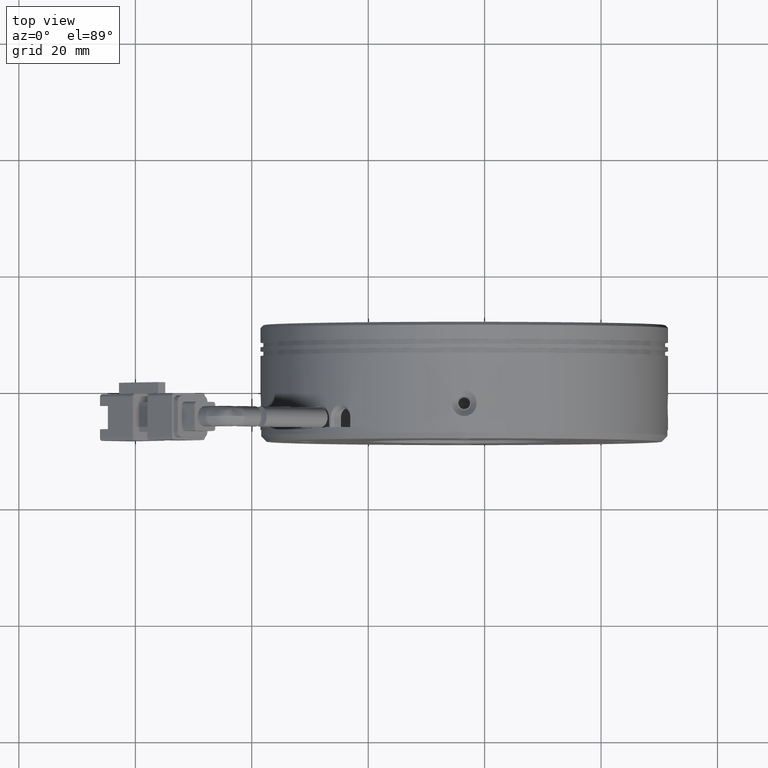
[diagram: clean part render]
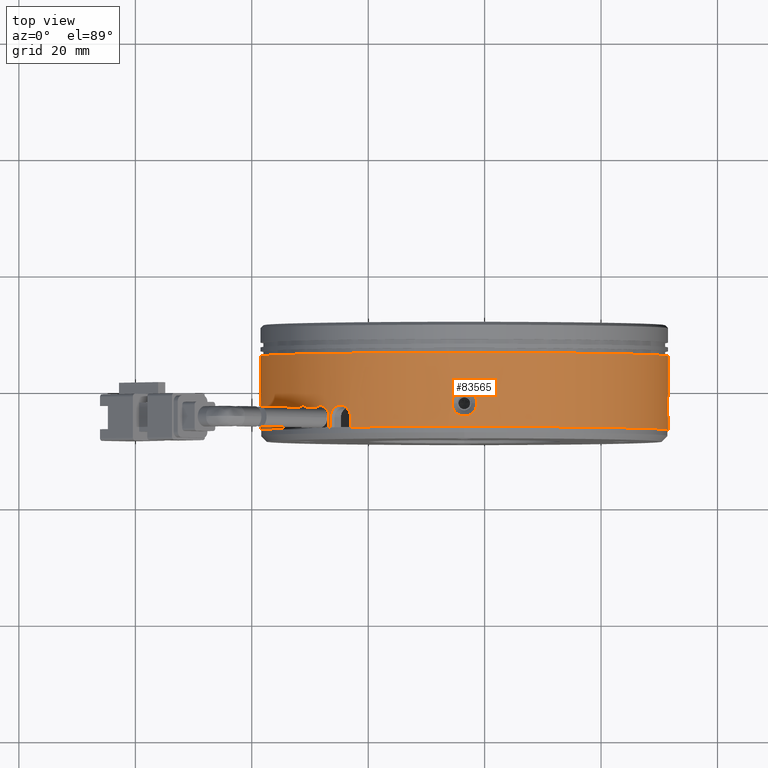
[diagram: same view with one face highlighted and labeled with its STEP entity id]
A machine part, top view. The second image highlights one B-rep face of the part: STEP entity #83565.
In plain terms, the highlighted cylindrical surface (partial cylindrical patch) has radius 35 mm, axis along (0, 1, 0).
Its self-contained STEP definition (entity closure, byte-faithful):
#10 = CARTESIAN_POINT ( 'NONE',  ( -38.45770563612305900, 38.41622023768910300, 1.715529665173488100 ) ) ;
#486 = CARTESIAN_POINT ( 'NONE',  ( -29.39579181623729600, 36.04285887621468000, 23.54514694683041800 ) ) ;
#733 = AXIS2_PLACEMENT_3D ( 'NONE', #43189, #1356, #50207 ) ;
#787 = CARTESIAN_POINT ( 'NONE',  ( -27.49805027081105600, 36.57435920577491100, 25.47684187512815900 ) ) ;
#1079 = ORIENTED_EDGE ( 'NONE', *, *, #63368, .T. ) ;
#1165 = ORIENTED_EDGE ( 'NONE', *, *, #6461, .T. ) ;
#1166 = CIRCLE ( 'NONE', #733, 35.00000000000000700 ) ;
#1356 = DIRECTION ( 'NONE',  ( 0.0000000000000000000, 1.000000000000000000, 0.0000000000000000000 ) ) ;
#1465 = CARTESIAN_POINT ( 'NONE',  ( -29.68536783976339400, 33.09174467303469000, 23.22253534177989900 ) ) ;
#2029 = ORIENTED_EDGE ( 'NONE', *, *, #71524, .T. ) ;
#2268 = CARTESIAN_POINT ( 'NONE',  ( -1.377828845883924300, 36.79194204904494100, 34.93566040393197600 ) ) ;
#2479 = CARTESIAN_POINT ( 'NONE',  ( -3.499229287090496400, 45.77623868994505300, -6.938893903907228400E-015 ) ) ;
#2578 = CARTESIAN_POINT ( 'NONE',  ( -3.638546594217164600, 34.87608461347451100, 35.00000911203947900 ) ) ;
#2601 = CARTESIAN_POINT ( 'NONE',  ( 31.49989311918675800, 34.89093892779393300, 0.2839471918921995200 ) ) ;
#2624 = CARTESIAN_POINT ( 'NONE',  ( -32.52532653127335000, 34.77623868994502500, 19.55724108281228600 ) ) ;
#2775 = CARTESIAN_POINT ( 'NONE',  ( -38.44635800336753600, 36.11228447202373100, 1.923778371862195900 ) ) ;
#2870 = CARTESIAN_POINT ( 'NONE',  ( -5.634061360858559900, 36.79002064916819800, 34.93483207368844700 ) ) ;
#2895 = CARTESIAN_POINT ( 'NONE',  ( 31.48425830003619900, 35.17396811425491900, 1.081301219104309900 ) ) ;
#2925 = CARTESIAN_POINT ( 'NONE',  ( -31.90791523299462500, 36.61451122822583700, 20.44535692094542900 ) ) ;
#3087 = VECTOR ( 'NONE', #24589, 1000.000000000000000 ) ;
#3236 = CARTESIAN_POINT ( 'NONE',  ( -30.25864505335594100, 36.17448260794892400, 22.55978353994103700 ) ) ;
#3671 = VERTEX_POINT ( 'NONE', #27263 ) ;
#3915 = EDGE_CURVE ( 'NONE', #46100, #88292, #7172, .T. ) ;
#4243 = EDGE_LOOP ( 'NONE', ( #59723, #11492, #84028, #39802, #88418, #65227, #29421, #36860, #26182, #74155, #1079, #44317, #30576, #78158, #74727, #83941, #58349, #9268, #65134, #29332, #13730, #2029, #74079, #75276, #25653, #69860, #26731, #4785 ) ) ;
#4408 = CARTESIAN_POINT ( 'NONE',  ( 31.47618942203703800, 38.82374157385329700, 1.325940147550659100 ) ) ;
#4785 = ORIENTED_EDGE ( 'NONE', *, *, #12772, .T. ) ;
#5005 = CARTESIAN_POINT ( 'NONE',  ( -24.91445535935785900, 36.87641542370931800, 27.68406309555492200 ) ) ;
#5303 = CARTESIAN_POINT ( 'NONE',  ( -23.15049905526861100, 35.46049154687053600, 28.96257360312102600 ) ) ;
#5922 = VERTEX_POINT ( 'NONE', #62236 ) ;
#5997 = CARTESIAN_POINT ( 'NONE',  ( -23.05692204881608400, 33.07623868994505000, 29.02579290625166700 ) ) ;
#6438 = CARTESIAN_POINT ( 'NONE',  ( -4.061863196109476900, 39.20344228934077800, 34.99575431248762000 ) ) ;
#6461 = EDGE_CURVE ( 'NONE', #88292, #46100, #16397, .T. ) ;
#6729 = CARTESIAN_POINT ( 'NONE',  ( -1.641182181223893400, 38.16864679442213100, 34.95072983954757700 ) ) ;
#6776 = CARTESIAN_POINT ( 'NONE',  ( -38.49922928709051500, 39.27623868984750300, 0.1431489450139444000 ) ) ;
#6929 = DIRECTION ( 'NONE',  ( 1.000000000000000000, 0.0000000000000000000, 1.942890293094023700E-016 ) ) ;
#7072 = CARTESIAN_POINT ( 'NONE',  ( -38.44046198416396700, 37.77755843533714900, 2.028049576817924300 ) ) ;
#7172 = B_SPLINE_CURVE_WITH_KNOTS ( 'NONE', 3,
 ( #22604, #50732, #8954, #20107, #68969, #27142, #75986, #34141, #82960, #41168, #89990, #48190, #6438, #55228, #13418, #62276, #20409, #69283, #27433, #76291, #34449, #83262, #41466, #90295, #48479, #6729, #55521, #13724, #62562, #20713 ),
 .UNSPECIFIED., .F., .F.,
 ( 4, 2, 2, 2, 2, 2, 2, 2, 2, 2, 2, 2, 2, 2, 4 ),
 ( 0.006801280354614730600, 0.007226328082781620700, 0.007651375810948510800, 0.008076423539115400900, 0.008501471267282290100, 0.009351566723616072000, 0.009776614451782964600, 0.01020166217994985600, 0.01062670990811674800, 0.01105175763628364100, 0.01147680536445053200, 0.01190185309261742500, 0.01232690082078431700, 0.01275194854895121000, 0.01360204400528499500 ),
 .UNSPECIFIED. ) ;
#7326 = FACE_BOUND ( 'NONE', #37972, .T. ) ;
#7560 = CARTESIAN_POINT ( 'NONE',  ( -29.13898031813537400, 36.43399729829361200, 23.82521363262265600 ) ) ;
#7722 = LINE ( 'NONE', #69439, #61243 ) ;
#7863 = CARTESIAN_POINT ( 'NONE',  ( -27.25449831927776100, 36.34085957950461000, 25.70402407524467100 ) ) ;
#7907 = CARTESIAN_POINT ( 'NONE',  ( -32.52504669713086800, 33.07623868994506500, 19.55765639535549700 ) ) ;
#8104 = VERTEX_POINT ( 'NONE', #88146 ) ;
#8524 = CARTESIAN_POINT ( 'NONE',  ( -38.49922928709050800, 49.23205631493804200, -1.373900992973631200E-014 ) ) ;
#8535 = CARTESIAN_POINT ( 'NONE',  ( -29.68551046036887800, 33.11147853065057900, 23.22237451928647200 ) ) ;
#8770 = CARTESIAN_POINT ( 'NONE',  ( -26.46604826730417400, 33.08662152481653600, 26.41070286712597000 ) ) ;
#8954 = CARTESIAN_POINT ( 'NONE',  ( -5.620629728297060100, 37.36053533084530200, 34.93566040393197600 ) ) ;
#9268 = ORIENTED_EDGE ( 'NONE', *, *, #50012, .T. ) ;
#9304 = CARTESIAN_POINT ( 'NONE',  ( -1.471187954059558500, 36.37487891295896200, 34.94123322545146900 ) ) ;
#9503 = DIRECTION ( 'NONE',  ( -1.000000000000000000, 0.0000000000000000000, -1.942890293094023500E-016 ) ) ;
#9603 = CARTESIAN_POINT ( 'NONE',  ( -4.059066451369793600, 34.94830758286238400, 34.99579616371983100 ) ) ;
#9807 = CARTESIAN_POINT ( 'NONE',  ( -38.45766819020756300, 35.74748487293023700, 1.706868790765627900 ) ) ;
#9935 = CARTESIAN_POINT ( 'NONE',  ( 31.47196835853760500, 35.43029536651063400, 1.422976774197618700 ) ) ;
#9962 = CARTESIAN_POINT ( 'NONE',  ( -31.60007463868275200, 36.80919942385151700, 20.86531018256495400 ) ) ;
#10162 = AXIS2_PLACEMENT_3D ( 'NONE', #2479, #51296, #9503 ) ;
#10261 = CARTESIAN_POINT ( 'NONE',  ( -30.09884793005326700, 35.84071393895220600, 22.74788916778230400 ) ) ;
#11120 = CARTESIAN_POINT ( 'NONE',  ( 31.43560278660753600, 37.07623868994505800, 2.134832073611387000 ) ) ;
#11400 = CARTESIAN_POINT ( 'NONE',  ( 31.49401059829447300, 39.15957240098404700, 0.6999233007469922700 ) ) ;
#11492 = ORIENTED_EDGE ( 'NONE', *, *, #62648, .T. ) ;
#11518 = DIRECTION ( 'NONE',  ( -0.0000000000000000000, -1.000000000000000000, -0.0000000000000000000 ) ) ;
#11688 = CARTESIAN_POINT ( 'NONE',  ( -26.41363987872078300, 35.32599599629639200, 26.45620074062070900 ) ) ;
#11729 = CARTESIAN_POINT ( 'NONE',  ( -26.72160380067638400, 34.77623868994505300, 26.18628117833375800 ) ) ;
#11987 = CARTESIAN_POINT ( 'NONE',  ( -24.58207903139069800, 36.86199809948782800, 27.93800242384497800 ) ) ;
#12077 = DIRECTION ( 'NONE',  ( 0.0000000000000000000, 1.000000000000000000, 0.0000000000000000000 ) ) ;
#12282 = CARTESIAN_POINT ( 'NONE',  ( -23.06874529189614600, 35.05714326796012900, 29.01783674772186600 ) ) ;
#12772 = EDGE_CURVE ( 'NONE', #77576, #81499, #81363, .T. ) ;
#13239 = CARTESIAN_POINT ( 'NONE',  ( -29.90972721175718300, 33.10628337847124700, 22.96705465094409600 ) ) ;
#13418 = CARTESIAN_POINT ( 'NONE',  ( -3.643087931106197000, 39.27608212271423600, 34.99999074064810900 ) ) ;
#13525 = VERTEX_POINT ( 'NONE', #61429 ) ;
#13724 = CARTESIAN_POINT ( 'NONE',  ( -1.419032314842205000, 37.64625739446822900, 34.93828416888766200 ) ) ;
#13730 = ORIENTED_EDGE ( 'NONE', *, *, #22802, .T. ) ;
#14080 = CARTESIAN_POINT ( 'NONE',  ( -38.43488899005446800, 37.36049043939159000, 2.121412253093250200 ) ) ;
#14330 = EDGE_CURVE ( 'NONE', #68440, #8104, #38010, .T. ) ;
#14559 = CARTESIAN_POINT ( 'NONE',  ( -28.71899431193891800, 36.74013805675299700, 24.26889469041680100 ) ) ;
#14877 = CARTESIAN_POINT ( 'NONE',  ( -27.04517305196541300, 36.04416105285866200, 25.89583728303579600 ) ) ;
#15787 = CARTESIAN_POINT ( 'NONE',  ( -26.46621055027218700, 33.10165680662448300, 26.41056174481128600 ) ) ;
#16201 = DIRECTION ( 'NONE',  ( 0.0000000000000000000, 1.000000000000000000, 0.0000000000000000000 ) ) ;
#16251 = VECTOR ( 'NONE', #71066, 1000.000000000000000 ) ;
#16330 = CARTESIAN_POINT ( 'NONE',  ( -1.639681307294347500, 35.98650694867659900, 34.95065003424878100 ) ) ;
#16397 = B_SPLINE_CURVE_WITH_KNOTS ( 'NONE', 3,
 ( #85857, #44082, #2268, #51111, #9304, #58142, #16330, #65165, #23325, #72161, #30302, #79193, #37320, #86152, #44392, #2578, #51402, #9603, #58441, #16639, #65461, #23640, #72460, #30622, #79489, #37623, #86474, #44706, #2870, #51708 ),
 .UNSPECIFIED., .F., .F.,
 ( 4, 2, 2, 2, 2, 2, 2, 2, 2, 2, 2, 2, 2, 2, 4 ),
 ( 0.0000000000000000000, 0.0004250800221634180100, 0.0008501600443268360200, 0.001275240066490254000, 0.001700320088653672000, 0.002550480132980507200, 0.002975560155143929700, 0.003400640177307351900, 0.003825720199470774000, 0.004250800221634197000, 0.004675880243797618700, 0.005100960265961042100, 0.005526040288124463800, 0.005951120310287887200, 0.006801280354614730600 ),
 .UNSPECIFIED. ) ;
#16526 = CARTESIAN_POINT ( 'NONE',  ( -38.43406136078915100, 37.07623868994505800, 2.134832073601135200 ) ) ;
#16564 = LINE ( 'NONE', #53949, #51499 ) ;
#16639 = CARTESIAN_POINT ( 'NONE',  ( -4.456000541674549200, 35.10426819026291400, 34.98716591107664400 ) ) ;
#16683 = CARTESIAN_POINT ( 'NONE',  ( -32.52532439524604500, 34.91665560219384200, 19.55724425302102500 ) ) ;
#16839 = CARTESIAN_POINT ( 'NONE',  ( -38.47464799621824500, 35.32873580604307800, 1.325940147544953500 ) ) ;
#16962 = CARTESIAN_POINT ( 'NONE',  ( 31.45084846215306800, 35.98093638822206900, 1.871623688163358300 ) ) ;
#16989 = CARTESIAN_POINT ( 'NONE',  ( -31.35310266635988400, 36.87569678694518400, 21.19389037858061500 ) ) ;
#17303 = CARTESIAN_POINT ( 'NONE',  ( -29.98302609540985100, 35.46114222802624000, 22.88255891083416000 ) ) ;
#17718 = LINE ( 'NONE', #46863, #31837 ) ;
#18446 = CARTESIAN_POINT ( 'NONE',  ( 31.49989230067373200, 39.26152844011900100, 0.2844990879349596500 ) ) ;
#18724 = CARTESIAN_POINT ( 'NONE',  ( -26.29906092009340000, 35.71675935869110000, 26.55504965282142700 ) ) ;
#19000 = CARTESIAN_POINT ( 'NONE',  ( -24.25735222048315600, 36.76992079441872400, 28.18008267164554300 ) ) ;
#19297 = CARTESIAN_POINT ( 'NONE',  ( -23.05650673183460600, 34.77623868994505300, 29.02607274416062200 ) ) ;
#19358 = VERTEX_POINT ( 'NONE', #63378 ) ;
#19421 = LINE ( 'NONE', #80437, #3087 ) ;
#19662 = DIRECTION ( 'NONE',  ( -1.000000000000000000, 0.0000000000000000000, -1.942890293094023500E-016 ) ) ;
#19789 = B_SPLINE_CURVE_WITH_KNOTS ( 'NONE', 3,
 ( #82762, #76380, #83334, #41563 ),
 .UNSPECIFIED., .F., .F.,
 ( 4, 4 ),
 ( 1.353093207250491300E-015, 4.511111109491530600E-005 ),
 .UNSPECIFIED. ) ;
#20107 = CARTESIAN_POINT ( 'NONE',  ( -5.567520195589478000, 37.63922103406199700, 34.93884486368479300 ) ) ;
#20331 = VERTEX_POINT ( 'NONE', #62899 ) ;
#20385 = B_SPLINE_CURVE_WITH_KNOTS ( 'NONE', 3,
 ( #88270, #39460, #53520, #11688, #60575, #18724, #67591, #25745, #74556, #32731, #81599, #39734, #88564, #46782, #5005, #53804, #11987, #60874, #19000, #67873, #26041, #74861, #33029, #81886, #40029, #88866, #47076, #5303, #54121, #12282, #61169, #19297 ),
 .UNSPECIFIED., .F., .F.,
 ( 4, 2, 2, 2, 2, 2, 2, 2, 2, 2, 2, 2, 2, 2, 2, 4 ),
 ( 0.0000000000000000000, 0.0004152412882299011100, 0.0008304825764598022100, 0.001245723864689703500, 0.001660965152919604400, 0.002491447729379407100, 0.002906689017609318600, 0.003321930305839230500, 0.003737171594069141600, 0.004152412882299052700, 0.004567654170528964200, 0.004982895458758875700, 0.005398136746988788100, 0.005813378035218699600, 0.006228619323448610300, 0.006643860611678522600 ),
 .UNSPECIFIED. ) ;
#20409 = CARTESIAN_POINT ( 'NONE',  ( -3.216260356081338300, 39.26166511440352700, 34.99912992300265600 ) ) ;
#20584 = CARTESIAN_POINT ( 'NONE',  ( -23.05650673183460600, 34.77623868994505300, 29.02607274416062200 ) ) ;
#20713 = CARTESIAN_POINT ( 'NONE',  ( -1.364397213318255400, 37.07623868994505800, 34.93483207367803800 ) ) ;
#20752 = CARTESIAN_POINT ( 'NONE',  ( -38.49835169336775200, 39.26153845208899200, 0.2839471918912897000 ) ) ;
#21062 = CARTESIAN_POINT ( 'NONE',  ( -38.43406136078915100, 37.07623868994505800, 2.134832073601135200 ) ) ;
#21306 = CARTESIAN_POINT ( 'NONE',  ( -29.68525516250278800, 33.08140695311698900, 23.22266239829805600 ) ) ;
#21513 = CARTESIAN_POINT ( 'NONE',  ( -38.49922928709050800, 33.07623868994505000, -1.373900992973631200E-014 ) ) ;
#21548 = CARTESIAN_POINT ( 'NONE',  ( -28.43973708831976300, 36.83183447587025900, 24.55583575869665600 ) ) ;
#21653 = DIRECTION ( 'NONE',  ( -0.0000000000000000000, -1.000000000000000000, -0.0000000000000000000 ) ) ;
#21848 = CARTESIAN_POINT ( 'NONE',  ( -26.88234878610289200, 35.69914915832100600, 26.04289847207001800 ) ) ;
#22604 = CARTESIAN_POINT ( 'NONE',  ( -5.634061360858810400, 37.07623868994505800, 34.93483207368843300 ) ) ;
#22780 = CARTESIAN_POINT ( 'NONE',  ( -26.46626367548724800, 33.12134584970633000, 26.41051554593739300 ) ) ;
#22802 = EDGE_CURVE ( 'NONE', #56118, #80479, #19421, .T. ) ;
#23325 = CARTESIAN_POINT ( 'NONE',  ( -1.881252523132536800, 35.63423702143155900, 34.96271823226722100 ) ) ;
#23640 = CARTESIAN_POINT ( 'NONE',  ( -4.811760792018039200, 35.33546143960907000, 34.97557273294851400 ) ) ;
#23665 = CARTESIAN_POINT ( 'NONE',  ( 31.50077071290951400, 34.87623869003545700, 0.1431489450146108700 ) ) ;
#23691 = CARTESIAN_POINT ( 'NONE',  ( -32.48572756146808900, 35.32586441836723900, 19.61590456905646500 ) ) ;
#23765 = CARTESIAN_POINT ( 'NONE',  ( -32.52511439086308100, 33.08169378863010500, 19.55755593004963400 ) ) ;
#23861 = CARTESIAN_POINT ( 'NONE',  ( -38.49246917247553100, 34.99290497891301800, 0.6999233007439869000 ) ) ;
#23975 = CARTESIAN_POINT ( 'NONE',  ( 31.43961742061734200, 36.51311142837625600, 2.068260033015473000 ) ) ;
#24001 = CARTESIAN_POINT ( 'NONE',  ( -31.09779853123330200, 36.86352304521961500, 21.52527646639874000 ) ) ;
#24301 = CARTESIAN_POINT ( 'NONE',  ( -29.91924764129770200, 35.05716682080303300, 22.95611932965989900 ) ) ;
#24589 = DIRECTION ( 'NONE',  ( -0.0000000000000000000, -1.000000000000000000, -0.0000000000000000000 ) ) ;
#25156 = CARTESIAN_POINT ( 'NONE',  ( 31.43643076592787700, 37.36047549362609000, 2.121406078974754600 ) ) ;
#25272 = CARTESIAN_POINT ( 'NONE',  ( 31.50077071290951400, 33.07623868994505000, 4.147485918937592700E-015 ) ) ;
#25386 = EDGE_CURVE ( 'NONE', #72242, #43570, #32188, .T. ) ;
#25430 = VECTOR ( 'NONE', #85332, 1000.000000000000000 ) ;
#25455 = CARTESIAN_POINT ( 'NONE',  ( 31.50077071290951400, 39.27623868985474300, 4.147485918937590400E-015 ) ) ;
#25507 = EDGE_CURVE ( 'NONE', #43570, #40485, #57904, .T. ) ;
#25653 = ORIENTED_EDGE ( 'NONE', *, *, #36026, .T. ) ;
#25745 = CARTESIAN_POINT ( 'NONE',  ( -26.12825900235608500, 36.06718584694523600, 26.70080962140444200 ) ) ;
#25867 = FACE_OUTER_BOUND ( 'NONE', #4243, .T. ) ;
#26041 = CARTESIAN_POINT ( 'NONE',  ( -23.94712327928421700, 36.60159261119267200, 28.40593523917219800 ) ) ;
#26182 = ORIENTED_EDGE ( 'NONE', *, *, #58562, .T. ) ;
#26731 = ORIENTED_EDGE ( 'NONE', *, *, #86836, .T. ) ;
#26842 = CARTESIAN_POINT ( 'NONE',  ( 31.50077071290951400, 49.23205631493804200, 4.147485918937592700E-015 ) ) ;
#27142 = CARTESIAN_POINT ( 'NONE',  ( -5.422920050273456900, 38.04038280663406400, 34.94713357074540000 ) ) ;
#27154 = VECTOR ( 'NONE', #11518, 1000.000000000000000 ) ;
#27263 = CARTESIAN_POINT ( 'NONE',  ( -38.49922928709050800, 34.87623869004255500, -1.373900992973631200E-014 ) ) ;
#27433 = CARTESIAN_POINT ( 'NONE',  ( -2.804604219278020900, 39.16158596806590000, 34.99335202203368300 ) ) ;
#27780 = CARTESIAN_POINT ( 'NONE',  ( -38.49249950808673800, 39.16011748836337600, 0.6984956733258577100 ) ) ;
#28253 = CARTESIAN_POINT ( 'NONE',  ( 31.50077071290951400, 45.77623868994505300, 4.147485918937592700E-015 ) ) ;
#28272 = CARTESIAN_POINT ( 'NONE',  ( -29.67636220665136500, 35.04911305928607800, 23.23270199531184600 ) ) ;
#28570 = CARTESIAN_POINT ( 'NONE',  ( -28.15257181959658400, 36.84496330723037300, 24.84413773591424900 ) ) ;
#28654 = CARTESIAN_POINT ( 'NONE',  ( -38.49922928709050800, 39.27623868984756000, -1.373900992973624100E-014 ) ) ;
#28788 = CARTESIAN_POINT ( 'NONE',  ( -26.46626367548724800, 33.12134584970633000, 26.41051554593739300 ) ) ;
#28871 = CARTESIAN_POINT ( 'NONE',  ( -26.77290270205204300, 35.31811580457318200, 26.14071285353338000 ) ) ;
#29150 = VERTEX_POINT ( 'NONE', #65575 ) ;
#29332 = ORIENTED_EDGE ( 'NONE', *, *, #41014, .T. ) ;
#29421 = ORIENTED_EDGE ( 'NONE', *, *, #43954, .F. ) ;
#29467 = CARTESIAN_POINT ( 'NONE',  ( -26.46597744918592500, 33.08142987498360600, 26.41076445072638600 ) ) ;
#30302 = CARTESIAN_POINT ( 'NONE',  ( -2.411786295882789600, 35.16127076750273500, 34.98405969625237300 ) ) ;
#30576 = ORIENTED_EDGE ( 'NONE', *, *, #44567, .T. ) ;
#30622 = CARTESIAN_POINT ( 'NONE',  ( -5.117256481201883900, 35.63419414744073100, 34.96271800440749900 ) ) ;
#30673 = CARTESIAN_POINT ( 'NONE',  ( -32.39959824740081000, 35.71585469069387400, 19.74263730738862000 ) ) ;
#30764 = VERTEX_POINT ( 'NONE', #48445 ) ;
#30821 = CARTESIAN_POINT ( 'NONE',  ( -38.49835087485472900, 34.89094893977823400, 0.2844990879335367300 ) ) ;
#30851 = CIRCLE ( 'NONE', #60192, 35.00000000000000700 ) ;
#30945 = CARTESIAN_POINT ( 'NONE',  ( 31.43560278659842700, 36.93322241865560300, 2.134832073614672900 ) ) ;
#30973 = CARTESIAN_POINT ( 'NONE',  ( -30.84669509655437700, 36.77321488735094600, 21.84337122616842600 ) ) ;
#31038 = CARTESIAN_POINT ( 'NONE',  ( -32.52516980470208100, 33.08714941961366000, 19.55747368844025800 ) ) ;
#31276 = CARTESIAN_POINT ( 'NONE',  ( -29.90972720879264200, 34.77623868994502500, 22.96705465504375000 ) ) ;
#31613 = CARTESIAN_POINT ( 'NONE',  ( -5.634061360858810400, 37.07623868994505800, 34.93483207368843300 ) ) ;
#31837 = VECTOR ( 'NONE', #12077, 1000.000000000000000 ) ;
#32069 = LINE ( 'NONE', #26842, #87761 ) ;
#32133 = CARTESIAN_POINT ( 'NONE',  ( 31.44200129304226000, 37.77745431248731500, 2.028086359619889500 ) ) ;
#32188 = B_SPLINE_CURVE_WITH_KNOTS ( 'NONE', 3,
 ( #79512, #23665, #2601, #37652, #86495, #44728, #2895, #51737, #9935, #58775, #16962, #65789, #23975, #72790, #30945, #79810 ),
 .UNSPECIFIED., .F., .F.,
 ( 4, 2, 2, 2, 2, 2, 2, 4 ),
 ( 0.006786052840671052600, 0.007210104708504526000, 0.007634156576337999500, 0.008058208444171472900, 0.008482260312004946300, 0.009330364047671879300, 0.009754415915505344100, 0.01017846778333881100 ),
 .UNSPECIFIED. ) ;
#32731 = CARTESIAN_POINT ( 'NONE',  ( -25.82974311901726900, 36.46406100834682500, 26.95158187246774200 ) ) ;
#33029 = CARTESIAN_POINT ( 'NONE',  ( -23.66895945501089200, 36.36599182774763500, 28.60405928037530300 ) ) ;
#33394 = CARTESIAN_POINT ( 'NONE',  ( -3.499229287090496400, 49.23205631493804200, -6.938893903907228400E-015 ) ) ;
#33631 = CARTESIAN_POINT ( 'NONE',  ( -38.49922928709050800, 45.77623868994505300, -1.373900992973631200E-014 ) ) ;
#33645 = EDGE_CURVE ( 'NONE', #40485, #78695, #16564, .T. ) ;
#33779 = VERTEX_POINT ( 'NONE', #90224 ) ;
#33853 = DIRECTION ( 'NONE',  ( 0.0000000000000000000, 1.000000000000000000, 0.0000000000000000000 ) ) ;
#34141 = CARTESIAN_POINT ( 'NONE',  ( -5.205920405684299400, 38.40523833648740700, 34.95844764762033200 ) ) ;
#34265 = CARTESIAN_POINT ( 'NONE',  ( -29.91005054073716700, 33.07623868994407000, 22.96668284071266100 ) ) ;
#34449 = CARTESIAN_POINT ( 'NONE',  ( -2.418311699921419100, 38.97865895142625400, 34.98349673944768800 ) ) ;
#34745 = VECTOR ( 'NONE', #74036, 1000.000000000000000 ) ;
#34790 = CARTESIAN_POINT ( 'NONE',  ( -38.48271687421729600, 38.97850926562809100, 1.081301219100581300 ) ) ;
#35272 = CARTESIAN_POINT ( 'NONE',  ( -29.61324911594615400, 35.44738323422608100, 23.30366487374871600 ) ) ;
#35581 = CARTESIAN_POINT ( 'NONE',  ( -27.86347176797479000, 36.77959478235775500, 25.12770389691147700 ) ) ;
#35739 = CARTESIAN_POINT ( 'NONE',  ( -23.05650673256541000, 33.12134584970664300, 29.02607274384642700 ) ) ;
#35874 = CARTESIAN_POINT ( 'NONE',  ( -26.72160634945139200, 34.91384702673369100, 26.18627891804307900 ) ) ;
#36026 = EDGE_CURVE ( 'NONE', #44043, #30764, #17718, .T. ) ;
#36159 = AXIS2_PLACEMENT_3D ( 'NONE', #33394, #82230, #19662 ) ;
#36860 = ORIENTED_EDGE ( 'NONE', *, *, #45403, .T. ) ;
#36925 = LINE ( 'NONE', #64069, #16251 ) ;
#37320 = CARTESIAN_POINT ( 'NONE',  ( -2.936595378071500800, 34.94903509054933700, 34.99575431248762000 ) ) ;
#37513 = CARTESIAN_POINT ( 'NONE',  ( -38.43488934010948600, 36.79200188626543900, 2.121406078964621400 ) ) ;
#37623 = CARTESIAN_POINT ( 'NONE',  ( -5.357276392957104800, 35.98383058546797000, 34.95072983954757700 ) ) ;
#37652 = CARTESIAN_POINT ( 'NONE',  ( 31.49654833088533900, 34.94863042771424900, 0.5610206150783537700 ) ) ;
#37682 = CARTESIAN_POINT ( 'NONE',  ( -32.27119035412150100, 36.06534127509602400, 19.92939004156805500 ) ) ;
#37744 = CARTESIAN_POINT ( 'NONE',  ( -32.52504669713086800, 33.07623868994506500, 19.55765639535549700 ) ) ;
#37830 = CARTESIAN_POINT ( 'NONE',  ( -38.49922928709050800, 34.87623869004255500, -1.373900992973631200E-014 ) ) ;
#37972 = EDGE_LOOP ( 'NONE', ( #1165, #65679 ) ) ;
#37990 = CARTESIAN_POINT ( 'NONE',  ( -30.60535279320352900, 36.60559141270771700, 22.14207711719853200 ) ) ;
#38010 = B_SPLINE_CURVE_WITH_KNOTS ( 'NONE', 3,
 ( #2624, #16683, #65506, #23691, #72518, #30673, #79534, #37682, #86521, #44749, #2925, #51765, #9962, #58795, #16989, #65811, #24001, #72816, #30973, #79838, #37990, #86831, #45042, #3236, #52065, #10261, #59092, #17303, #66123, #24301, #73119, #31276 ),
 .UNSPECIFIED., .F., .F.,
 ( 4, 2, 2, 2, 2, 2, 2, 2, 2, 2, 2, 2, 2, 2, 2, 4 ),
 ( 0.0000000000000000000, 0.0004152824789865322900, 0.0008305649579730645900, 0.001245847436959597000, 0.001661129915946129200, 0.002491694873919179700, 0.002906977352905696700, 0.003322259831892214100, 0.003737542310878725100, 0.004152824789865236000, 0.004568107268851747400, 0.004983389747838257900, 0.005398672226824768400, 0.005813954705811279700, 0.006229237184797791100, 0.006644519663784301600 ),
 .UNSPECIFIED. ) ;
#38051 = CARTESIAN_POINT ( 'NONE',  ( -32.52528866417332400, 33.10218477581542400, 19.55729728404286000 ) ) ;
#38095 = DIRECTION ( 'NONE',  ( -0.0000000000000000000, -1.000000000000000000, 0.0000000000000000000 ) ) ;
#39108 = CARTESIAN_POINT ( 'NONE',  ( -26.72160380121760800, 33.12134584970657900, 26.18628117801718200 ) ) ;
#39183 = CARTESIAN_POINT ( 'NONE',  ( 31.45141462431927300, 38.16576001633865200, 1.859661740665222100 ) ) ;
#39460 = CARTESIAN_POINT ( 'NONE',  ( -26.46626084548775600, 34.91664351670698400, 26.41051800695320800 ) ) ;
#39734 = CARTESIAN_POINT ( 'NONE',  ( -25.34433801059612200, 36.77240159372363600, 27.34607401877343600 ) ) ;
#39802 = ORIENTED_EDGE ( 'NONE', *, *, #25507, .T. ) ;
#40029 = CARTESIAN_POINT ( 'NONE',  ( -23.42917275770623000, 36.06601376351957100, 28.77157648209005500 ) ) ;
#40485 = VERTEX_POINT ( 'NONE', #69627 ) ;
#40986 = CARTESIAN_POINT ( 'NONE',  ( -29.90972720926512100, 33.12134584970655700, 22.96705465468053800 ) ) ;
#41014 = EDGE_CURVE ( 'NONE', #19358, #56118, #56849, .T. ) ;
#41168 = CARTESIAN_POINT ( 'NONE',  ( -4.824847784311986100, 38.82401066425628500, 34.97543131385661000 ) ) ;
#41466 = CARTESIAN_POINT ( 'NONE',  ( -2.077610213242002200, 38.72350972449897500, 34.97125478826107800 ) ) ;
#41517 = CARTESIAN_POINT ( 'NONE',  ( -38.49922928709050800, 39.27623868984756000, -1.373900992973624100E-014 ) ) ;
#41563 = CARTESIAN_POINT ( 'NONE',  ( -26.72197728007797200, 33.07623868994410500, 26.18594996657880400 ) ) ;
#41818 = CARTESIAN_POINT ( 'NONE',  ( -38.47042693271882300, 38.72218201337261000, 1.422976774192378900 ) ) ;
#42314 = CARTESIAN_POINT ( 'NONE',  ( -29.49884825754492100, 35.81762564086962900, 23.43129763724226000 ) ) ;
#42608 = CARTESIAN_POINT ( 'NONE',  ( -27.58696348921920800, 36.63844654513134500, 25.39285473755884900 ) ) ;
#43189 = CARTESIAN_POINT ( 'NONE',  ( -3.499229287090496400, 33.07623868994505000, -6.938893903907228400E-015 ) ) ;
#43296 = CARTESIAN_POINT ( 'NONE',  ( -29.68517925304296100, 33.07623868994461700, 23.22274799373740700 ) ) ;
#43570 = VERTEX_POINT ( 'NONE', #62218 ) ;
#43954 = EDGE_CURVE ( 'NONE', #86843, #58226, #7722, .T. ) ;
#44005 = LINE ( 'NONE', #8524, #25430 ) ;
#44043 = VERTEX_POINT ( 'NONE', #28788 ) ;
#44082 = CARTESIAN_POINT ( 'NONE',  ( -1.364397213318255400, 36.93314054177425700, 34.93483207367804500 ) ) ;
#44317 = ORIENTED_EDGE ( 'NONE', *, *, #50121, .T. ) ;
#44392 = CARTESIAN_POINT ( 'NONE',  ( -3.355370643074829100, 34.87639525717587900, 34.99999074064810900 ) ) ;
#44567 = EDGE_CURVE ( 'NONE', #13525, #68440, #53349, .T. ) ;
#44607 = CARTESIAN_POINT ( 'NONE',  ( -38.44045986722378700, 36.37502306740583400, 2.028086359610374400 ) ) ;
#44706 = CARTESIAN_POINT ( 'NONE',  ( -5.579426259338808900, 36.50621998542190000, 34.93828416888767000 ) ) ;
#44728 = CARTESIAN_POINT ( 'NONE',  ( 31.48789573422353900, 35.10504896278109800, 0.9580917013837750900 ) ) ;
#44749 = CARTESIAN_POINT ( 'NONE',  ( -32.04697049621529500, 36.46043286356463400, 20.25009539567988900 ) ) ;
#44789 = CARTESIAN_POINT ( 'NONE',  ( 31.50077071290951400, 34.87623869003537200, 4.147485918937498800E-015 ) ) ;
#45042 = CARTESIAN_POINT ( 'NONE',  ( -30.38817541865017800, 36.36958000379309700, 22.40523915192453700 ) ) ;
#45112 = CARTESIAN_POINT ( 'NONE',  ( -32.52532653127335000, 33.12134584970629400, 19.55724108281228600 ) ) ;
#45403 = EDGE_CURVE ( 'NONE', #86843, #5922, #77336, .T. ) ;
#45946 = CARTESIAN_POINT ( 'NONE',  ( -32.52532653127335000, 49.23205631493804200, 19.55724108281227900 ) ) ;
#46000 = CARTESIAN_POINT ( 'NONE',  ( -29.90972720879264200, 49.23205631493804200, 22.96705465504375000 ) ) ;
#46100 = VERTEX_POINT ( 'NONE', #31613 ) ;
#46178 = CARTESIAN_POINT ( 'NONE',  ( 31.46347908693954700, 38.51798618201817000, 1.618187548137977500 ) ) ;
#46393 = CARTESIAN_POINT ( 'NONE',  ( -1.364397213318255400, 37.07623868994505800, 34.93483207367803800 ) ) ;
#46782 = CARTESIAN_POINT ( 'NONE',  ( -25.02331518822071700, 36.86371784935684600, 27.59950126062173200 ) ) ;
#46863 = CARTESIAN_POINT ( 'NONE',  ( -26.46626367548725500, 49.23205631493804200, 26.41051554593739300 ) ) ;
#47076 = CARTESIAN_POINT ( 'NONE',  ( -23.24214805060694300, 35.71650215980028500, 28.90017702221050700 ) ) ;
#47757 = CARTESIAN_POINT ( 'NONE',  ( -23.05664565034080800, 33.09124664477191400, 29.02597914489887600 ) ) ;
#48190 = CARTESIAN_POINT ( 'NONE',  ( -4.198616899324378000, 39.15976580612436900, 34.99325075268621500 ) ) ;
#48445 = CARTESIAN_POINT ( 'NONE',  ( -26.46626367548724800, 34.77623868994506000, 26.41051554593740700 ) ) ;
#48453 = B_SPLINE_CURVE_WITH_KNOTS ( 'NONE', 3,
 ( #40986, #13239, #76113, #34265 ),
 .UNSPECIFIED., .F., .F.,
 ( 4, 4 ),
 ( 1.360032055766997800E-015, 4.511100424450192200E-005 ),
 .UNSPECIFIED. ) ;
#48479 = CARTESIAN_POINT ( 'NONE',  ( -1.794024483978147000, 38.40723138057352100, 34.95852016238821100 ) ) ;
#48489 = AXIS2_PLACEMENT_3D ( 'NONE', #57989, #16201, #65021 ) ;
#48694 = DIRECTION ( 'NONE',  ( -0.0000000000000000000, -1.000000000000000000, 0.0000000000000000000 ) ) ;
#48832 = CARTESIAN_POINT ( 'NONE',  ( -38.44930703633446700, 38.17154099166220500, 1.871623688155621200 ) ) ;
#49323 = CARTESIAN_POINT ( 'NONE',  ( -29.33588638927307800, 36.14895650311903100, 23.61094151400485300 ) ) ;
#49630 = CARTESIAN_POINT ( 'NONE',  ( -27.33232278789349200, 36.42581542357874700, 25.63194363915723500 ) ) ;
#50012 = EDGE_CURVE ( 'NONE', #57624, #82769, #86546, .T. ) ;
#50121 = EDGE_CURVE ( 'NONE', #75808, #13525, #65534, .T. ) ;
#50207 = DIRECTION ( 'NONE',  ( -1.000000000000000000, 0.0000000000000000000, -1.942890293094023500E-016 ) ) ;
#50310 = CARTESIAN_POINT ( 'NONE',  ( -29.68546292176455700, 33.10161095143445900, 23.22242812564610400 ) ) ;
#50732 = CARTESIAN_POINT ( 'NONE',  ( -5.634061360858937400, 37.21933683811357000, 34.93483207368843300 ) ) ;
#51111 = CARTESIAN_POINT ( 'NONE',  ( -1.430938378591527700, 36.51325634582809000, 34.93884486368479300 ) ) ;
#51296 = DIRECTION ( 'NONE',  ( -0.0000000000000000000, -1.000000000000000000, -0.0000000000000000000 ) ) ;
#51402 = CARTESIAN_POINT ( 'NONE',  ( -3.782198218099664300, 34.89081226548658800, 34.99912992300264100 ) ) ;
#51499 = VECTOR ( 'NONE', #68014, 1000.000000000000000 ) ;
#51605 = CARTESIAN_POINT ( 'NONE',  ( -38.44987319850071800, 35.98671736355584700, 1.859661740656727300 ) ) ;
#51708 = CARTESIAN_POINT ( 'NONE',  ( -5.634061360858810400, 37.07623868994505800, 34.93483207368843300 ) ) ;
#51737 = CARTESIAN_POINT ( 'NONE',  ( 31.47627070206805700, 35.33698274678562300, 1.314540449531120400 ) ) ;
#51765 = CARTESIAN_POINT ( 'NONE',  ( -31.68042534323328900, 36.76927883008723800, 20.75660625065443600 ) ) ;
#52065 = CARTESIAN_POINT ( 'NONE',  ( -30.20071328280221200, 36.06846619860252900, 22.62823293957157100 ) ) ;
#53232 = CARTESIAN_POINT ( 'NONE',  ( 31.48481708484710100, 38.99095042602653600, 1.087851395283023800 ) ) ;
#53349 = LINE ( 'NONE', #45946, #34745 ) ;
#53520 = CARTESIAN_POINT ( 'NONE',  ( -26.45557192205593100, 35.05463610450787100, 26.41982405724736100 ) ) ;
#53804 = CARTESIAN_POINT ( 'NONE',  ( -24.69425828352930800, 36.87576055887231500, 27.85300707365549400 ) ) ;
#53949 = CARTESIAN_POINT ( 'NONE',  ( 31.50077071290951400, 49.23205631493804200, 4.147485918937592700E-015 ) ) ;
#54121 = CARTESIAN_POINT ( 'NONE',  ( -23.11580020594365000, 35.32861478778553300, 28.98604753265588800 ) ) ;
#54238 = CYLINDRICAL_SURFACE ( 'NONE', #36159, 35.00000000000000700 ) ;
#55228 = CARTESIAN_POINT ( 'NONE',  ( -3.783482310473327700, 39.26154304773943000, 34.99912251806140500 ) ) ;
#55383 = DIRECTION ( 'NONE',  ( 0.0000000000000000000, 1.000000000000000000, 0.0000000000000000000 ) ) ;
#55521 = CARTESIAN_POINT ( 'NONE',  ( -1.575531328425882100, 38.04036387438655700, 34.94713316126452400 ) ) ;
#55861 = CARTESIAN_POINT ( 'NONE',  ( -38.43807599479887900, 37.63936595150915600, 2.068260033006259500 ) ) ;
#56118 = VERTEX_POINT ( 'NONE', #11729 ) ;
#56347 = CARTESIAN_POINT ( 'NONE',  ( -28.97946972464138300, 36.58691562346633900, 23.99626089325233000 ) ) ;
#56431 = CARTESIAN_POINT ( 'NONE',  ( -23.05650673183460600, 49.23205631493804200, 29.02607274416062200 ) ) ;
#56639 = CARTESIAN_POINT ( 'NONE',  ( -27.10975982623885700, 36.14850123577952000, 25.83703752585223500 ) ) ;
#56849 = B_SPLINE_CURVE_WITH_KNOTS ( 'NONE', 3,
 ( #63103, #70113, #28272, #77122, #35272, #84072, #42314, #486, #49323, #7560, #56347, #14559, #63401, #21548, #70414, #28570, #77429, #35581, #84372, #42608, #787, #49630, #7863, #56639, #14877, #63703, #21848, #70718, #28871, #77722, #35874, #84675 ),
 .UNSPECIFIED., .F., .F.,
 ( 4, 2, 2, 2, 2, 2, 2, 2, 2, 2, 2, 2, 2, 2, 2, 4 ),
 ( 0.0000000000000000000, 0.0004070252156231301800, 0.0008140504312462603500, 0.001221075646869390600, 0.001628100862492520700, 0.002442151293738760800, 0.002849176509361880900, 0.003256201724985000200, 0.003663226940608119500, 0.004070252156231238800, 0.004477277371854358100, 0.004884302587477477300, 0.005291327803100597500, 0.005698353018723716800, 0.006105378234346836100, 0.006512403449969954500 ),
 .UNSPECIFIED. ) ;
#57220 = EDGE_CURVE ( 'NONE', #82769, #19358, #36925, .T. ) ;
#57321 = CARTESIAN_POINT ( 'NONE',  ( -29.68551046542420800, 33.12134584970633000, 23.22237451358594700 ) ) ;
#57575 = CARTESIAN_POINT ( 'NONE',  ( -26.46610430588221200, 33.09181341786147400, 26.41065413561741300 ) ) ;
#57624 = VERTEX_POINT ( 'NONE', #75259 ) ;
#57904 = B_SPLINE_CURVE_WITH_KNOTS ( 'NONE', 3,
 ( #11120, #67008, #25156, #73980, #32133, #81022, #39183, #87972, #46178, #4408, #53232, #11400, #60289, #18446, #67303, #25455 ),
 .UNSPECIFIED., .F., .F.,
 ( 4, 2, 2, 2, 2, 2, 2, 4 ),
 ( -0.003393637960554932600, -0.002969433215485605500, -0.002545228470416278900, -0.002121023725346952300, -0.001696818980277625200, -0.0008484094901389563900, -0.0004242047450696219600, -2.875304161431557800E-016 ),
 .UNSPECIFIED. ) ;
#57989 = CARTESIAN_POINT ( 'NONE',  ( -3.499229287090496400, 33.07623868994505000, -6.938893903907228400E-015 ) ) ;
#58142 = CARTESIAN_POINT ( 'NONE',  ( -1.575538523907559400, 36.11209457325604400, 34.94713357074541400 ) ) ;
#58226 = VERTEX_POINT ( 'NONE', #33631 ) ;
#58340 = CARTESIAN_POINT ( 'NONE',  ( -38.43406136078915100, 36.93317085908777400, 2.134832073601089500 ) ) ;
#58349 = ORIENTED_EDGE ( 'NONE', *, *, #61158, .F. ) ;
#58441 = CARTESIAN_POINT ( 'NONE',  ( -4.193854354902994100, 34.99089141182425100, 34.99335202203370400 ) ) ;
#58562 = EDGE_CURVE ( 'NONE', #5922, #3671, #75352, .T. ) ;
#58643 = CARTESIAN_POINT ( 'NONE',  ( -38.46193766112087100, 35.63449119787739500, 1.618187548130787700 ) ) ;
#58775 = CARTESIAN_POINT ( 'NONE',  ( 31.45924706194176000, 35.73625714219459600, 1.715529665180217400 ) ) ;
#58795 = CARTESIAN_POINT ( 'NONE',  ( -31.43626894928663200, 36.86226258101288500, 21.08412894576470000 ) ) ;
#59092 = CARTESIAN_POINT ( 'NONE',  ( -30.05446377238097000, 35.71742489503624500, 22.79961660035935700 ) ) ;
#59723 = ORIENTED_EDGE ( 'NONE', *, *, #80903, .T. ) ;
#60192 = AXIS2_PLACEMENT_3D ( 'NONE', #90494, #48694, #6929 ) ;
#60289 = CARTESIAN_POINT ( 'NONE',  ( 31.49651349682231700, 39.20324197866710800, 0.5634169400654471800 ) ) ;
#60575 = CARTESIAN_POINT ( 'NONE',  ( -26.38184856767035700, 35.46081790309658300, 26.48374443724160400 ) ) ;
#60863 = EDGE_CURVE ( 'NONE', #63274, #3671, #44005, .T. ) ;
#60874 = CARTESIAN_POINT ( 'NONE',  ( -24.36411048212180900, 36.80898341746802100, 28.10116128370383800 ) ) ;
#61158 = EDGE_CURVE ( 'NONE', #57624, #20331, #30851, .T. ) ;
#61169 = CARTESIAN_POINT ( 'NONE',  ( -23.05650970498405500, 34.91667299212227200, 29.02607074090276400 ) ) ;
#61229 = CIRCLE ( 'NONE', #48489, 35.00000000000000700 ) ;
#61243 = VECTOR ( 'NONE', #55383, 1000.000000000000000 ) ;
#61429 = CARTESIAN_POINT ( 'NONE',  ( -32.52532653127335000, 33.12134584970629400, 19.55724108281228600 ) ) ;
#62218 = CARTESIAN_POINT ( 'NONE',  ( 31.43560278660753600, 37.07623868994505800, 2.134832073611387000 ) ) ;
#62236 = CARTESIAN_POINT ( 'NONE',  ( -38.43406136078915100, 37.07623868994505800, 2.134832073601135200 ) ) ;
#62276 = CARTESIAN_POINT ( 'NONE',  ( -3.359911979963832600, 39.27639276641561100, 35.00000911203947900 ) ) ;
#62562 = CARTESIAN_POINT ( 'NONE',  ( -1.364397213318255400, 37.36241324350477600, 34.93483207367803800 ) ) ;
#62648 = EDGE_CURVE ( 'NONE', #78433, #72242, #32069, .T. ) ;
#62899 = CARTESIAN_POINT ( 'NONE',  ( -29.91005054073716700, 33.07623868994407000, 22.96668284071266100 ) ) ;
#62916 = CARTESIAN_POINT ( 'NONE',  ( -38.43406136078914400, 37.21927261467683900, 2.134832073601180100 ) ) ;
#63103 = CARTESIAN_POINT ( 'NONE',  ( -29.68551046542420100, 34.77623868994506000, 23.22237451358595500 ) ) ;
#63274 = VERTEX_POINT ( 'NONE', #21513 ) ;
#63368 = EDGE_CURVE ( 'NONE', #63274, #75808, #1166, .T. ) ;
#63378 = CARTESIAN_POINT ( 'NONE',  ( -29.68551046542420100, 34.77623868994506000, 23.22237451358595500 ) ) ;
#63401 = CARTESIAN_POINT ( 'NONE',  ( -28.62725496723145800, 36.77952667242654900, 24.36391439423145800 ) ) ;
#63703 = CARTESIAN_POINT ( 'NONE',  ( -26.93170683684961400, 35.82022912540372800, 25.99855481076118500 ) ) ;
#64069 = CARTESIAN_POINT ( 'NONE',  ( -29.68551046542420500, 49.23205631493804200, 23.22237451358594700 ) ) ;
#64341 = LINE ( 'NONE', #46000, #27154 ) ;
#64614 = CARTESIAN_POINT ( 'NONE',  ( -26.46626366991374700, 33.11150145402800900, 26.41051555078419700 ) ) ;
#64897 = CARTESIAN_POINT ( 'NONE',  ( -23.05692204881608400, 33.07623868994505000, 29.02579290625166700 ) ) ;
#65021 = DIRECTION ( 'NONE',  ( -1.000000000000000000, 0.0000000000000000000, -1.942890293094023500E-016 ) ) ;
#65052 = CARTESIAN_POINT ( 'NONE',  ( -29.68551046542420800, 33.12134584970633000, 23.22237451358594700 ) ) ;
#65134 = ORIENTED_EDGE ( 'NONE', *, *, #57220, .T. ) ;
#65165 = CARTESIAN_POINT ( 'NONE',  ( -1.792538168496689500, 35.74723904340273600, 34.95844764762033900 ) ) ;
#65227 = ORIENTED_EDGE ( 'NONE', *, *, #89900, .T. ) ;
#65461 = CARTESIAN_POINT ( 'NONE',  ( -4.580146874259596300, 35.17381842846386800, 34.98349673944768100 ) ) ;
#65506 = CARTESIAN_POINT ( 'NONE',  ( -32.51728035346624800, 35.05462126878820300, 19.56919790338977400 ) ) ;
#65534 = B_SPLINE_CURVE_WITH_KNOTS ( 'NONE', 3,
 ( #37744, #23765, #31038, #79901, #38051, #86901, #45112 ),
 .UNSPECIFIED., .F., .F.,
 ( 4, 3, 4 ),
 ( 6.938893903907228400E-018, 1.636933097118977100E-005, 4.511106808455039700E-005 ),
 .UNSPECIFIED. ) ;
#65575 = CARTESIAN_POINT ( 'NONE',  ( -29.90972720926512100, 33.12134584970655700, 22.96705465468053800 ) ) ;
#65677 = CARTESIAN_POINT ( 'NONE',  ( -38.48327565902823000, 35.16152695387018700, 1.087851395278404600 ) ) ;
#65679 = ORIENTED_EDGE ( 'NONE', *, *, #3915, .T. ) ;
#65789 = CARTESIAN_POINT ( 'NONE',  ( 31.44200340998244800, 36.37491894454797100, 2.028049576826787400 ) ) ;
#65811 = CARTESIAN_POINT ( 'NONE',  ( -31.18419236951034900, 36.87653280578354800, 21.41406245280689200 ) ) ;
#66123 = CARTESIAN_POINT ( 'NONE',  ( -29.95595561255761300, 35.32908356491977000, 22.91380406334933500 ) ) ;
#66773 = EDGE_CURVE ( 'NONE', #29150, #20331, #48453, .T. ) ;
#67008 = CARTESIAN_POINT ( 'NONE',  ( 31.43560278659839100, 37.21930652079965500, 2.134832073615021000 ) ) ;
#67303 = CARTESIAN_POINT ( 'NONE',  ( 31.50077071290302700, 39.27623868985741500, 0.1431917151364814300 ) ) ;
#67591 = CARTESIAN_POINT ( 'NONE',  ( -26.24836353593273900, 35.83800854358864300, 26.59855468293363100 ) ) ;
#67873 = CARTESIAN_POINT ( 'NONE',  ( -24.04852402474949000, 36.66623140220474400, 28.33272335804379700 ) ) ;
#68014 = DIRECTION ( 'NONE',  ( 0.0000000000000000000, 1.000000000000000000, 0.0000000000000000000 ) ) ;
#68440 = VERTEX_POINT ( 'NONE', #84397 ) ;
#68812 = CIRCLE ( 'NONE', #76601, 35.00000000000000700 ) ;
#68969 = CARTESIAN_POINT ( 'NONE',  ( -5.527270620121446300, 37.77759846693115300, 34.94123322545148400 ) ) ;
#69283 = CARTESIAN_POINT ( 'NONE',  ( -2.939392122811227600, 39.20416979702773100, 34.99579616371984500 ) ) ;
#69439 = CARTESIAN_POINT ( 'NONE',  ( -38.49922928709050800, 49.23205631493804200, -1.373900992973631200E-014 ) ) ;
#69627 = CARTESIAN_POINT ( 'NONE',  ( 31.50077071290951400, 39.27623868985474300, 4.147485918937590400E-015 ) ) ;
#69635 = CARTESIAN_POINT ( 'NONE',  ( -38.49500690506638300, 39.20384695216864700, 0.5610206150766298100 ) ) ;
#69860 = ORIENTED_EDGE ( 'NONE', *, *, #71367, .T. ) ;
#70113 = CARTESIAN_POINT ( 'NONE',  ( -29.68550806380132200, 34.91384285647574600, 23.22237722173160500 ) ) ;
#70367 = CIRCLE ( 'NONE', #10162, 35.00000000000000700 ) ;
#70414 = CARTESIAN_POINT ( 'NONE',  ( -28.34480495088970600, 36.84483300927527000, 24.65189339179814400 ) ) ;
#70718 = CARTESIAN_POINT ( 'NONE',  ( -26.80295710797288700, 35.44763967702675000, 26.11396385043589400 ) ) ;
#71066 = DIRECTION ( 'NONE',  ( 0.0000000000000000000, 1.000000000000000000, 0.0000000000000000000 ) ) ;
#71367 = EDGE_CURVE ( 'NONE', #30764, #76290, #20385, .T. ) ;
#71471 = VECTOR ( 'NONE', #21653, 1000.000000000000000 ) ;
#71524 = EDGE_CURVE ( 'NONE', #80479, #33779, #19789, .T. ) ;
#72161 = CARTESIAN_POINT ( 'NONE',  ( -2.173610789869039600, 35.32846671563379500, 34.97543131385659600 ) ) ;
#72242 = VERTEX_POINT ( 'NONE', #44789 ) ;
#72460 = CARTESIAN_POINT ( 'NONE',  ( -4.920848360938979500, 35.42896765539112600, 34.97125478826109200 ) ) ;
#72518 = CARTESIAN_POINT ( 'NONE',  ( -32.46179790684570300, 35.46058335750046800, 19.65127662110356600 ) ) ;
#72672 = CARTESIAN_POINT ( 'NONE',  ( -38.49497207100335300, 34.94923540123001300, 0.5634169400629744900 ) ) ;
#72790 = CARTESIAN_POINT ( 'NONE',  ( 31.43643041587289100, 36.79198694049495100, 2.121412253103116100 ) ) ;
#72816 = CARTESIAN_POINT ( 'NONE',  ( -30.92943324240927800, 36.81176510608359800, 21.73942184714806200 ) ) ;
#73119 = CARTESIAN_POINT ( 'NONE',  ( -29.90972952557649800, 34.91664101030320200, 22.96705199090525800 ) ) ;
#73980 = CARTESIAN_POINT ( 'NONE',  ( 31.43961390371789100, 37.63910374056380400, 2.068319022800263300 ) ) ;
#74036 = DIRECTION ( 'NONE',  ( 0.0000000000000000000, 1.000000000000000000, 0.0000000000000000000 ) ) ;
#74079 = ORIENTED_EDGE ( 'NONE', *, *, #81006, .F. ) ;
#74155 = ORIENTED_EDGE ( 'NONE', *, *, #60863, .F. ) ;
#74556 = CARTESIAN_POINT ( 'NONE',  ( -26.05854710226186900, 36.17493969649536500, 26.75980349461939800 ) ) ;
#74727 = ORIENTED_EDGE ( 'NONE', *, *, #79430, .T. ) ;
#74861 = CARTESIAN_POINT ( 'NONE',  ( -23.75789722870843300, 36.45171790888784400, 28.54119651940505500 ) ) ;
#75248 = CARTESIAN_POINT ( 'NONE',  ( -23.05650673256541000, 33.12134584970664300, 29.02607274384642700 ) ) ;
#75259 = CARTESIAN_POINT ( 'NONE',  ( -29.68517925304296100, 33.07623868994461700, 23.22274799373740700 ) ) ;
#75276 = ORIENTED_EDGE ( 'NONE', *, *, #89107, .T. ) ;
#75352 = B_SPLINE_CURVE_WITH_KNOTS ( 'NONE', 3,
 ( #16526, #58340, #37513, #86370, #44607, #2775, #51605, #9807, #58643, #16839, #65677, #23861, #72672, #30821, #79685, #37830 ),
 .UNSPECIFIED., .F., .F.,
 ( 4, 2, 2, 2, 2, 2, 2, 4 ),
 ( 0.01017846778330741700, 0.01060262017243397500, 0.01102677256156053100, 0.01145092495068708900, 0.01187507733981364700, 0.01272338211806676100, 0.01314753450719331400, 0.01357168689631986700 ),
 .UNSPECIFIED. ) ;
#75549 = CARTESIAN_POINT ( 'NONE',  ( -23.05650673650320900, 33.10628284262292500, 29.02607274036124700 ) ) ;
#75808 = VERTEX_POINT ( 'NONE', #7907 ) ;
#75986 = CARTESIAN_POINT ( 'NONE',  ( -5.358777266886664700, 38.16597043121349500, 34.95065003424877400 ) ) ;
#76113 = CARTESIAN_POINT ( 'NONE',  ( -29.90983535261175800, 33.09124716020517100, 22.96693029918071700 ) ) ;
#76290 = VERTEX_POINT ( 'NONE', #20584 ) ;
#76291 = CARTESIAN_POINT ( 'NONE',  ( -2.542458032506417000, 39.04820918962717300, 34.98716591107665200 ) ) ;
#76380 = CARTESIAN_POINT ( 'NONE',  ( -26.72160380423087700, 33.10628297585962800, 26.18628117456815100 ) ) ;
#76601 = AXIS2_PLACEMENT_3D ( 'NONE', #79939, #38095, #86934 ) ;
#76637 = CARTESIAN_POINT ( 'NONE',  ( -38.48635430840459300, 39.04742841710189100, 0.9580917013805144700 ) ) ;
#77122 = CARTESIAN_POINT ( 'NONE',  ( -29.64046438720464500, 35.31517709525490300, 23.27308654501770100 ) ) ;
#77336 = B_SPLINE_CURVE_WITH_KNOTS ( 'NONE', 3,
 ( #41517, #6776, #20752, #69635, #27780, #76637, #34790, #83591, #41818, #10, #48832, #7072, #55861, #14080, #62916, #21062 ),
 .UNSPECIFIED., .F., .F.,
 ( 4, 2, 2, 2, 2, 2, 2, 4 ),
 ( 0.006786052840648299100, 0.007210104708480689200, 0.007634156576313079300, 0.008058208444145469400, 0.008482260311977860400, 0.009330364047642638800, 0.009754415915475028000, 0.01017846778330741700 ),
 .UNSPECIFIED. ) ;
#77429 = CARTESIAN_POINT ( 'NONE',  ( -28.05440875344324400, 36.83167715362536400, 24.94115025762434400 ) ) ;
#77482 = CARTESIAN_POINT ( 'NONE',  ( -29.68531802590951700, 33.08657568895214500, 23.22259151275607900 ) ) ;
#77576 = VERTEX_POINT ( 'NONE', #35739 ) ;
#77722 = CARTESIAN_POINT ( 'NONE',  ( -26.73216544170527000, 35.05156490842850300, 26.17692534184958600 ) ) ;
#78158 = ORIENTED_EDGE ( 'NONE', *, *, #14330, .T. ) ;
#78337 = CARTESIAN_POINT ( 'NONE',  ( -26.46589185543577800, 33.07623868994462400, 26.41083888239386500 ) ) ;
#78433 = VERTEX_POINT ( 'NONE', #25272 ) ;
#78695 = VERTEX_POINT ( 'NONE', #28253 ) ;
#78764 = VERTEX_POINT ( 'NONE', #84965 ) ;
#79193 = CARTESIAN_POINT ( 'NONE',  ( -2.799841674856637500, 34.99271157376571800, 34.99325075268620100 ) ) ;
#79430 = EDGE_CURVE ( 'NONE', #8104, #29150, #64341, .T. ) ;
#79489 = CARTESIAN_POINT ( 'NONE',  ( -5.204434090202865600, 35.74524599931661600, 34.95852016238820400 ) ) ;
#79512 = CARTESIAN_POINT ( 'NONE',  ( 31.50077071290951400, 34.87623869003537200, 4.147485918937498800E-015 ) ) ;
#79534 = CARTESIAN_POINT ( 'NONE',  ( -32.36150633573582500, 35.83676746228533700, 19.79836595880937000 ) ) ;
#79685 = CARTESIAN_POINT ( 'NONE',  ( -38.49922928707955800, 34.87623869003801500, 0.1431740422147703400 ) ) ;
#79810 = CARTESIAN_POINT ( 'NONE',  ( 31.43560278660753600, 37.07623868994505800, 2.134832073611387000 ) ) ;
#79838 = CARTESIAN_POINT ( 'NONE',  ( -30.68439286270962900, 36.67014008718261700, 22.04503649556580300 ) ) ;
#79901 = CARTESIAN_POINT ( 'NONE',  ( -32.52521293538058000, 33.09260531730162600, 19.55740967636558700 ) ) ;
#79939 = CARTESIAN_POINT ( 'NONE',  ( -3.499229287090496400, 33.07623868994505000, -6.938893903907228400E-015 ) ) ;
#80437 = CARTESIAN_POINT ( 'NONE',  ( -26.72160380067638400, 49.23205631493804200, 26.18628117833375800 ) ) ;
#80479 = VERTEX_POINT ( 'NONE', #39108 ) ;
#80903 = EDGE_CURVE ( 'NONE', #81499, #78433, #61229, .T. ) ;
#81006 = EDGE_CURVE ( 'NONE', #78764, #33779, #68812, .T. ) ;
#81022 = CARTESIAN_POINT ( 'NONE',  ( 31.44789942918606200, 38.04019290787036300, 1.923778371871071500 ) ) ;
#81363 = B_SPLINE_CURVE_WITH_KNOTS ( 'NONE', 3,
 ( #75248, #75549, #47757, #5997 ),
 .UNSPECIFIED., .F., .F.,
 ( 4, 4 ),
 ( 1.665352606875907700E-015, 4.511106800019388400E-005 ),
 .UNSPECIFIED. ) ;
#81499 = VERTEX_POINT ( 'NONE', #64897 ) ;
#81599 = CARTESIAN_POINT ( 'NONE',  ( -25.64489395139997900, 36.61846460030054100, 27.10416377798844700 ) ) ;
#81886 = CARTESIAN_POINT ( 'NONE',  ( -23.50336516431369600, 36.17173875666809800, 28.72011090103126600 ) ) ;
#82230 = DIRECTION ( 'NONE',  ( 0.0000000000000000000, 1.000000000000000000, 0.0000000000000000000 ) ) ;
#82762 = CARTESIAN_POINT ( 'NONE',  ( -26.72160380121760800, 33.12134584970657900, 26.18628117801718200 ) ) ;
#82769 = VERTEX_POINT ( 'NONE', #65052 ) ;
#82960 = CARTESIAN_POINT ( 'NONE',  ( -5.117206051048472500, 38.51824035845854900, 34.96271823226722800 ) ) ;
#83262 = CARTESIAN_POINT ( 'NONE',  ( -2.186697782162971400, 38.81701594028107400, 34.97557273294851400 ) ) ;
#83334 = CARTESIAN_POINT ( 'NONE',  ( -26.72172872285236500, 33.09124674880856500, 26.18617039725548800 ) ) ;
#83565 = ADVANCED_FACE ( 'NONE', ( #7326, #25867 ), #54238, .T. ) ;
#83591 = CARTESIAN_POINT ( 'NONE',  ( -38.47472927624921400, 38.81549463309738700, 1.314540449526540500 ) ) ;
#83941 = ORIENTED_EDGE ( 'NONE', *, *, #66773, .T. ) ;
#84028 = ORIENTED_EDGE ( 'NONE', *, *, #25386, .T. ) ;
#84072 = CARTESIAN_POINT ( 'NONE',  ( -29.54231147251996200, 35.69855545425129900, 23.38291466975027100 ) ) ;
#84372 = CARTESIAN_POINT ( 'NONE',  ( -27.76993405353088200, 36.74103152869096100, 25.21802729904648600 ) ) ;
#84397 = CARTESIAN_POINT ( 'NONE',  ( -32.52532653127335000, 34.77623868994502500, 19.55724108281228600 ) ) ;
#84675 = CARTESIAN_POINT ( 'NONE',  ( -26.72160380067638400, 34.77623868994505300, 26.18628117833375800 ) ) ;
#84965 = CARTESIAN_POINT ( 'NONE',  ( -26.46589185543577800, 33.07623868994462400, 26.41083888239386500 ) ) ;
#85332 = DIRECTION ( 'NONE',  ( 0.0000000000000000000, 1.000000000000000000, 0.0000000000000000000 ) ) ;
#85857 = CARTESIAN_POINT ( 'NONE',  ( -1.364397213318255400, 37.07623868994505800, 34.93483207367803800 ) ) ;
#86152 = CARTESIAN_POINT ( 'NONE',  ( -3.214976263707694800, 34.89093433215070700, 34.99912251806139100 ) ) ;
#86370 = CARTESIAN_POINT ( 'NONE',  ( -38.43807247789946000, 36.51337363932884700, 2.068319022790498200 ) ) ;
#86474 = CARTESIAN_POINT ( 'NONE',  ( -5.422927245755125200, 36.11211350550357200, 34.94713316126451700 ) ) ;
#86495 = CARTESIAN_POINT ( 'NONE',  ( 31.49404093390571200, 34.99235989151952000, 0.6984956733280589500 ) ) ;
#86521 = CARTESIAN_POINT ( 'NONE',  ( -32.21890749124506200, 36.17245694832277500, 20.00475085496275400 ) ) ;
#86546 = B_SPLINE_CURVE_WITH_KNOTS ( 'NONE', 3,
 ( #43296, #21306, #77482, #1465, #50310, #8535, #57321 ),
 .UNSPECIFIED., .F., .F.,
 ( 4, 3, 4 ),
 ( 7.632783294297951200E-017, 1.550858785957242700E-005, 4.511111130278940200E-005 ),
 .UNSPECIFIED. ) ;
#86831 = CARTESIAN_POINT ( 'NONE',  ( -30.45768874105179300, 36.45556069038318000, 22.32162571278679800 ) ) ;
#86836 = EDGE_CURVE ( 'NONE', #76290, #77576, #89988, .T. ) ;
#86843 = VERTEX_POINT ( 'NONE', #28654 ) ;
#86901 = CARTESIAN_POINT ( 'NONE',  ( -32.52532652652679700, 33.11176543258063300, 19.55724108985694100 ) ) ;
#86934 = DIRECTION ( 'NONE',  ( 1.000000000000000000, 0.0000000000000000000, 1.942890293094023700E-016 ) ) ;
#87761 = VECTOR ( 'NONE', #33853, 1000.000000000000000 ) ;
#87972 = CARTESIAN_POINT ( 'NONE',  ( 31.45920961602619700, 38.40499250696495900, 1.706868790773296700 ) ) ;
#88146 = CARTESIAN_POINT ( 'NONE',  ( -29.90972720879264200, 34.77623868994502500, 22.96705465504375000 ) ) ;
#88270 = CARTESIAN_POINT ( 'NONE',  ( -26.46626367548724800, 34.77623868994506000, 26.41051554593740700 ) ) ;
#88292 = VERTEX_POINT ( 'NONE', #46393 ) ;
#88418 = ORIENTED_EDGE ( 'NONE', *, *, #33645, .T. ) ;
#88564 = CARTESIAN_POINT ( 'NONE',  ( -25.23857229104088500, 36.81181663273785200, 27.43026994892478500 ) ) ;
#88866 = CARTESIAN_POINT ( 'NONE',  ( -23.29888898806387900, 35.83917091028487100, 28.86138831955847200 ) ) ;
#89107 = EDGE_CURVE ( 'NONE', #78764, #44043, #89966, .T. ) ;
#89900 = EDGE_CURVE ( 'NONE', #78695, #58226, #70367, .T. ) ;
#89966 = B_SPLINE_CURVE_WITH_KNOTS ( 'NONE', 3,
 ( #78337, #29467, #8770, #57575, #15787, #64614, #22780 ),
 .UNSPECIFIED., .F., .F.,
 ( 4, 3, 4 ),
 ( 7.632783294297951200E-017, 1.557727242651427000E-005, 4.511100456017559700E-005 ),
 .UNSPECIFIED. ) ;
#89988 = LINE ( 'NONE', #56431, #71471 ) ;
#89990 = CARTESIAN_POINT ( 'NONE',  ( -4.586672278298232500, 38.99120661238733700, 34.98405969625235200 ) ) ;
#90224 = CARTESIAN_POINT ( 'NONE',  ( -26.72197728007797200, 33.07623868994410500, 26.18594996657880400 ) ) ;
#90295 = CARTESIAN_POINT ( 'NONE',  ( -1.881202092979125600, 38.51828323244939200, 34.96271800440749900 ) ) ;
#90494 = CARTESIAN_POINT ( 'NONE',  ( -3.499229287090496400, 33.07623868994505000, -6.938893903907228400E-015 ) ) ;